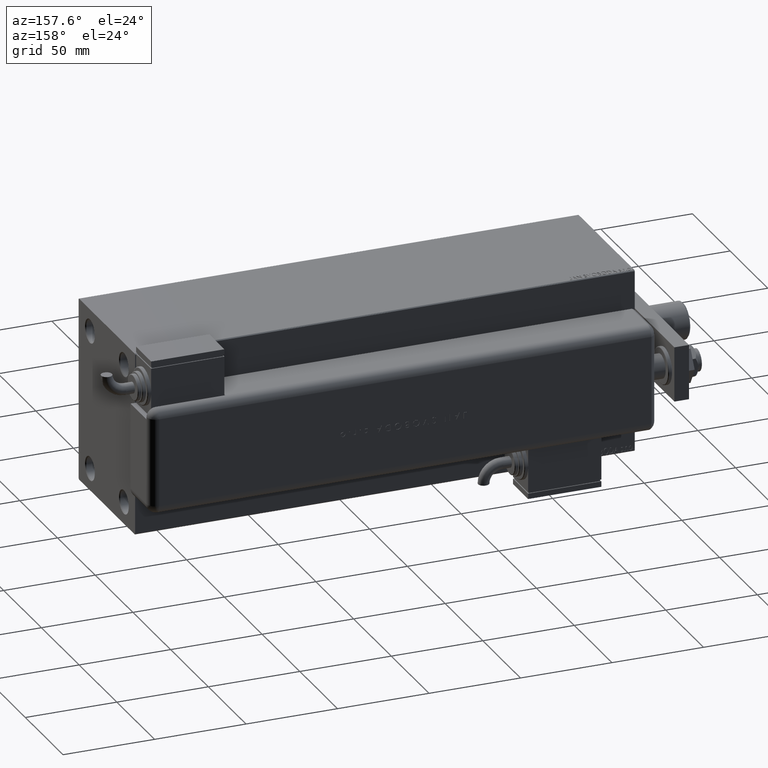
[diagram: clean part render]
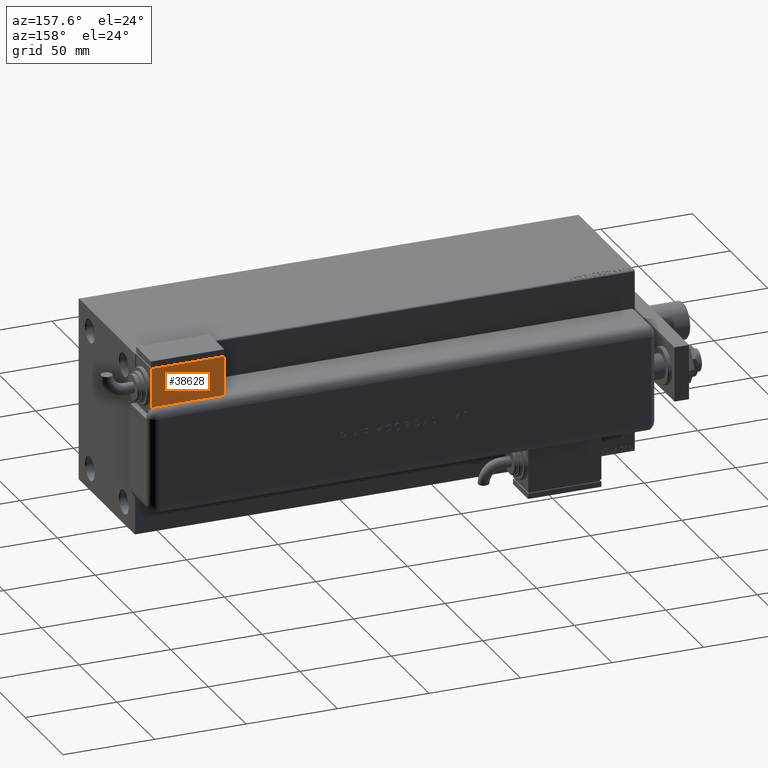
[diagram: same view with one face highlighted and labeled with its STEP entity id]
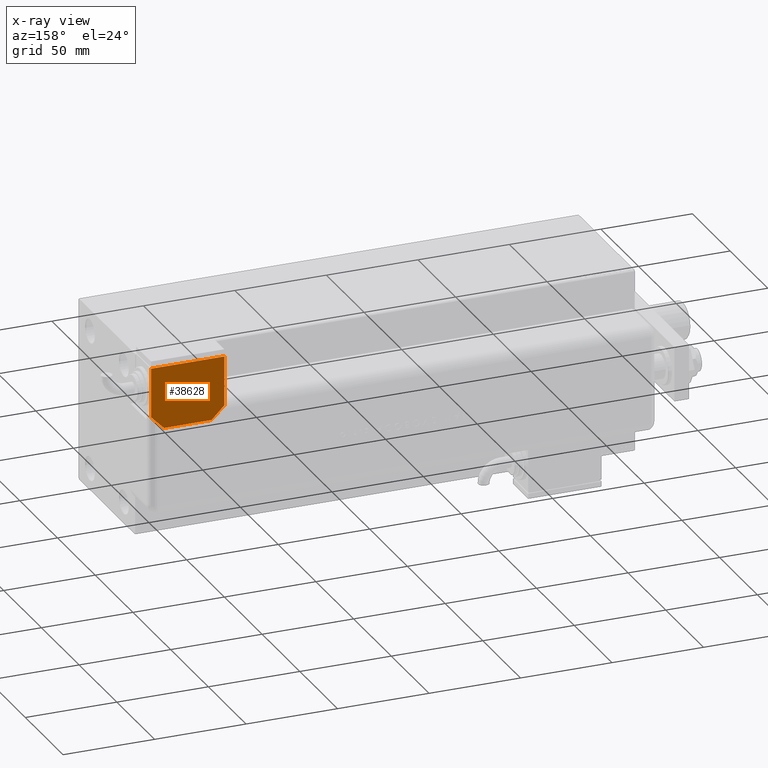
[diagram: x-ray of the same camera — body ghosted, the highlighted face saturated]
A machine part, auxiliary view. The second image highlights one B-rep face of the part: STEP entity #38628.
The next image is the same camera in x-ray: the body ghosted, the highlighted face saturated — about 0% of this face is hidden behind the body in this view.
In plain terms, the highlighted planar face has unit normal (-0, -1, 0).
Its self-contained STEP definition (entity closure, byte-faithful):
#150 = CARTESIAN_POINT ( 'NONE',  ( -12.99999999999994138, 20.50000000000009592, -10.00000000000000000 ) ) ;
#375 = VERTEX_POINT ( 'NONE', #25370 ) ;
#576 = ORIENTED_EDGE ( 'NONE', *, *, #42868, .F. ) ;
#2139 = LINE ( 'NONE', #11049, #13042 ) ;
#4177 = PLANE ( 'NONE',  #26534 ) ;
#6898 = ORIENTED_EDGE ( 'NONE', *, *, #25782, .F. ) ;
#8067 = CARTESIAN_POINT ( 'NONE',  ( 0.000000000000000000, 20.50000000000009592, -10.00000000000000000 ) ) ;
#8123 = CARTESIAN_POINT ( 'NONE',  ( -19.99999999999994316, -13.49999999999996092, -10.00000000000000000 ) ) ;
#9082 = CARTESIAN_POINT ( 'NONE',  ( 0.000000000000000000, 0.000000000000000000, -10.00000000000000000 ) ) ;
#11049 = CARTESIAN_POINT ( 'NONE',  ( -19.99999999999994316, -13.49999999999996092, -10.00000000000000000 ) ) ;
#11305 = VECTOR ( 'NONE', #32325, 1000.000000000000000 ) ;
#11868 = LINE ( 'NONE', #46479, #49125 ) ;
#13042 = VECTOR ( 'NONE', #53715, 1000.000000000000000 ) ;
#17310 = VECTOR ( 'NONE', #19161, 1000.000000000000000 ) ;
#19161 = DIRECTION ( 'NONE',  ( -0.7071067811865356934, -0.7071067811865593411, -0.000000000000000000 ) ) ;
#21436 = CARTESIAN_POINT ( 'NONE',  ( 20.00000000000005329, -13.49999999999996092, -10.00000000000000000 ) ) ;
#21673 = EDGE_CURVE ( 'NONE', #36465, #375, #36071, .T. ) ;
#22722 = VERTEX_POINT ( 'NONE', #60552 ) ;
#22729 = EDGE_CURVE ( 'NONE', #32448, #48440, #51034, .T. ) ;
#22898 = DIRECTION ( 'NONE',  ( 0.000000000000000000, 0.000000000000000000, 1.000000000000000000 ) ) ;
#23927 = ORIENTED_EDGE ( 'NONE', *, *, #21673, .F. ) ;
#24230 = ORIENTED_EDGE ( 'NONE', *, *, #48649, .F. ) ;
#25370 = CARTESIAN_POINT ( 'NONE',  ( 20.00000000000005329, -13.49999999999996092, -10.00000000000000000 ) ) ;
#25600 = VERTEX_POINT ( 'NONE', #46879 ) ;
#25782 = EDGE_CURVE ( 'NONE', #32448, #25600, #38207, .T. ) ;
#26002 = DIRECTION ( 'NONE',  ( -0.7071067811865479058, 0.7071067811865470176, -0.000000000000000000 ) ) ;
#26103 = ORIENTED_EDGE ( 'NONE', *, *, #39834, .F. ) ;
#26475 = DIRECTION ( 'NONE',  ( -1.284980352575421081E-16, -1.000000000000000000, -0.000000000000000000 ) ) ;
#26534 = AXIS2_PLACEMENT_3D ( 'NONE', #9082, #22898, #60062 ) ;
#26911 = FACE_OUTER_BOUND ( 'NONE', #60014, .T. ) ;
#29662 = EDGE_CURVE ( 'NONE', #34017, #36465, #59307, .T. ) ;
#30168 = CARTESIAN_POINT ( 'NONE',  ( 12.99999999999999112, 20.50000000000009592, -10.00000000000000000 ) ) ;
#30260 = VECTOR ( 'NONE', #26475, 1000.000000000000000 ) ;
#30602 = VECTOR ( 'NONE', #35553, 1000.000000000000000 ) ;
#32325 = DIRECTION ( 'NONE',  ( 1.000000000000000000, 0.000000000000000000, 0.000000000000000000 ) ) ;
#32448 = VERTEX_POINT ( 'NONE', #150 ) ;
#34017 = VERTEX_POINT ( 'NONE', #36436 ) ;
#34962 = CARTESIAN_POINT ( 'NONE',  ( -19.99999999999994316, -13.49999999999996092, -10.00000000000000000 ) ) ;
#35251 = LINE ( 'NONE', #21436, #30602 ) ;
#35553 = DIRECTION ( 'NONE',  ( 1.284980352575412699E-16, 1.000000000000000000, 0.000000000000000000 ) ) ;
#36071 = LINE ( 'NONE', #8123, #60600 ) ;
#36436 = CARTESIAN_POINT ( 'NONE',  ( -19.99999999999993960, 2.569960705150834076E-15, -9.999999999999996447 ) ) ;
#36465 = VERTEX_POINT ( 'NONE', #34962 ) ;
#38207 = LINE ( 'NONE', #42499, #17310 ) ;
#38628 = ADVANCED_FACE ( 'NONE', ( #26911 ), #4177, .F. ) ;
#39319 = ORIENTED_EDGE ( 'NONE', *, *, #29662, .F. ) ;
#39834 = EDGE_CURVE ( 'NONE', #22722, #48440, #11868, .T. ) ;
#42499 = CARTESIAN_POINT ( 'NONE',  ( -19.99999999999993960, 13.49999999999986500, -10.00000000000000000 ) ) ;
#42868 = EDGE_CURVE ( 'NONE', #375, #22722, #35251, .T. ) ;
#46479 = CARTESIAN_POINT ( 'NONE',  ( 9.999999999999984013, 23.50000000000009592, -10.00000000000000000 ) ) ;
#46879 = CARTESIAN_POINT ( 'NONE',  ( -19.99999999999993960, 13.49999999999986500, -10.00000000000000000 ) ) ;
#48440 = VERTEX_POINT ( 'NONE', #30168 ) ;
#48649 = EDGE_CURVE ( 'NONE', #25600, #34017, #2139, .T. ) ;
#49125 = VECTOR ( 'NONE', #26002, 1000.000000000000114 ) ;
#51034 = LINE ( 'NONE', #8067, #11305 ) ;
#52665 = ORIENTED_EDGE ( 'NONE', *, *, #22729, .T. ) ;
#53715 = DIRECTION ( 'NONE',  ( -1.284980352575421081E-16, -1.000000000000000000, -0.000000000000000000 ) ) ;
#55090 = DIRECTION ( 'NONE',  ( 1.000000000000000000, 0.000000000000000000, 0.000000000000000000 ) ) ;
#58167 = CARTESIAN_POINT ( 'NONE',  ( -19.99999999999994316, -13.49999999999996092, -10.00000000000000000 ) ) ;
#59307 = LINE ( 'NONE', #58167, #30260 ) ;
#60014 = EDGE_LOOP ( 'NONE', ( #6898, #52665, #26103, #576, #23927, #39319, #24230 ) ) ;
#60062 = DIRECTION ( 'NONE',  ( 1.000000000000000000, 0.000000000000000000, -0.000000000000000000 ) ) ;
#60552 = CARTESIAN_POINT ( 'NONE',  ( 20.00000000000005684, 13.50000000000003730, -10.00000000000000000 ) ) ;
#60600 = VECTOR ( 'NONE', #55090, 1000.000000000000000 ) ;